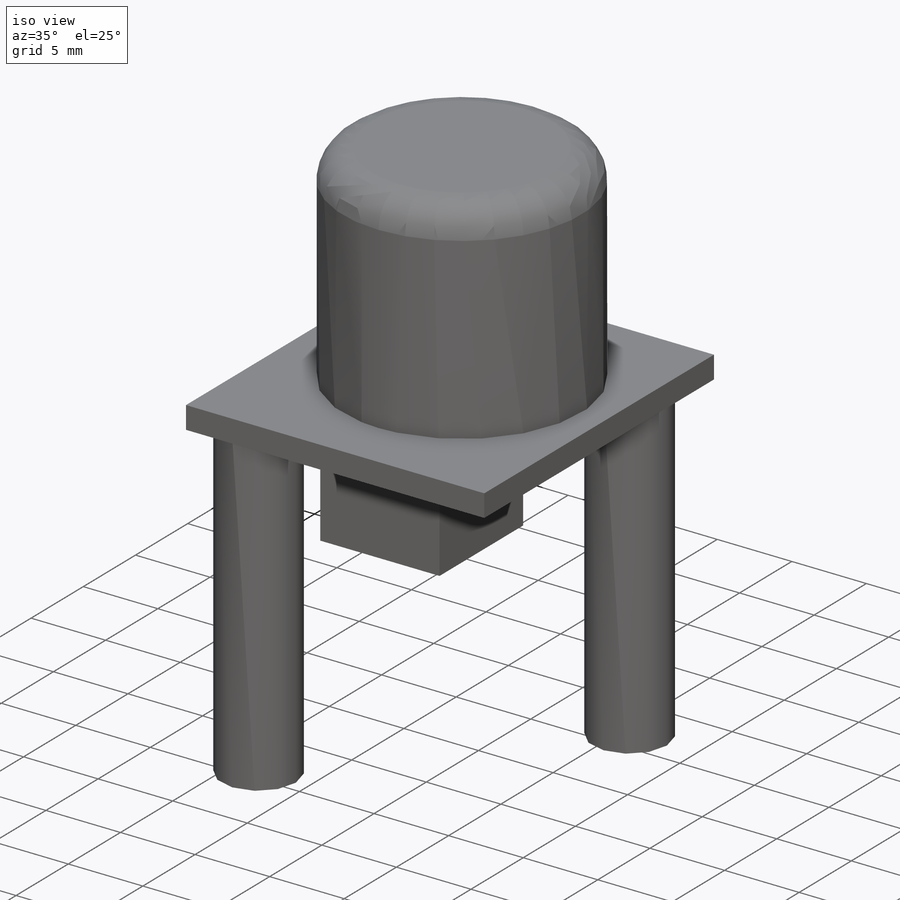
[diagram: iso view]
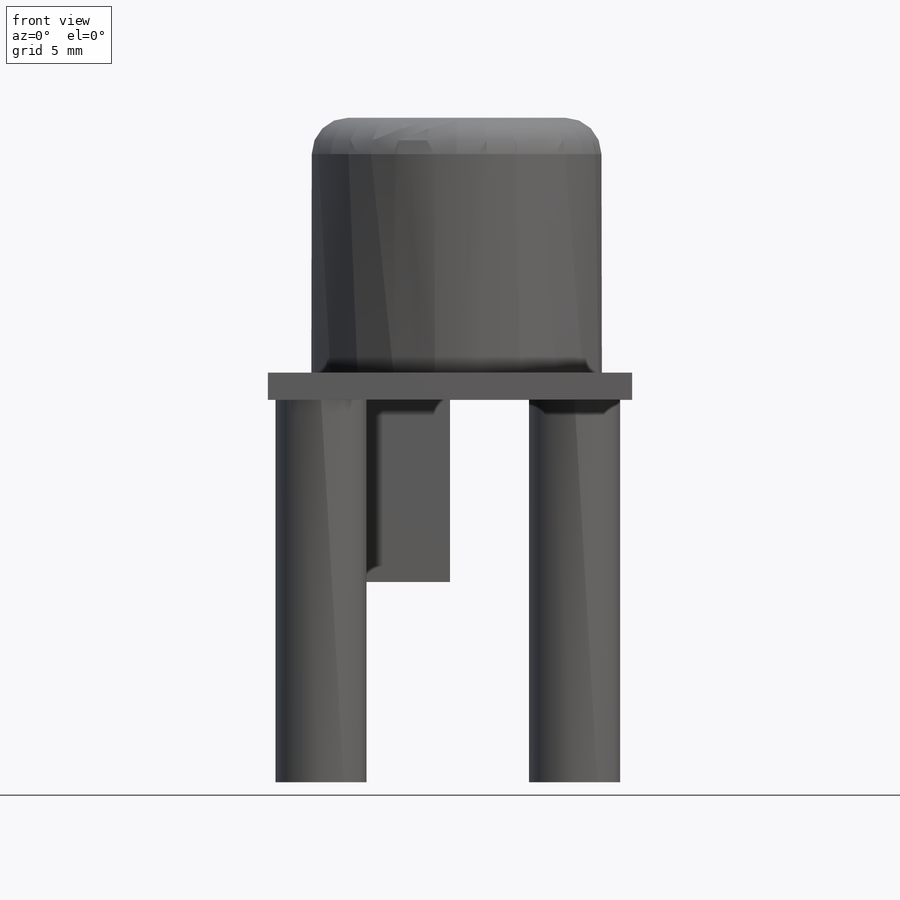
[diagram: front view]
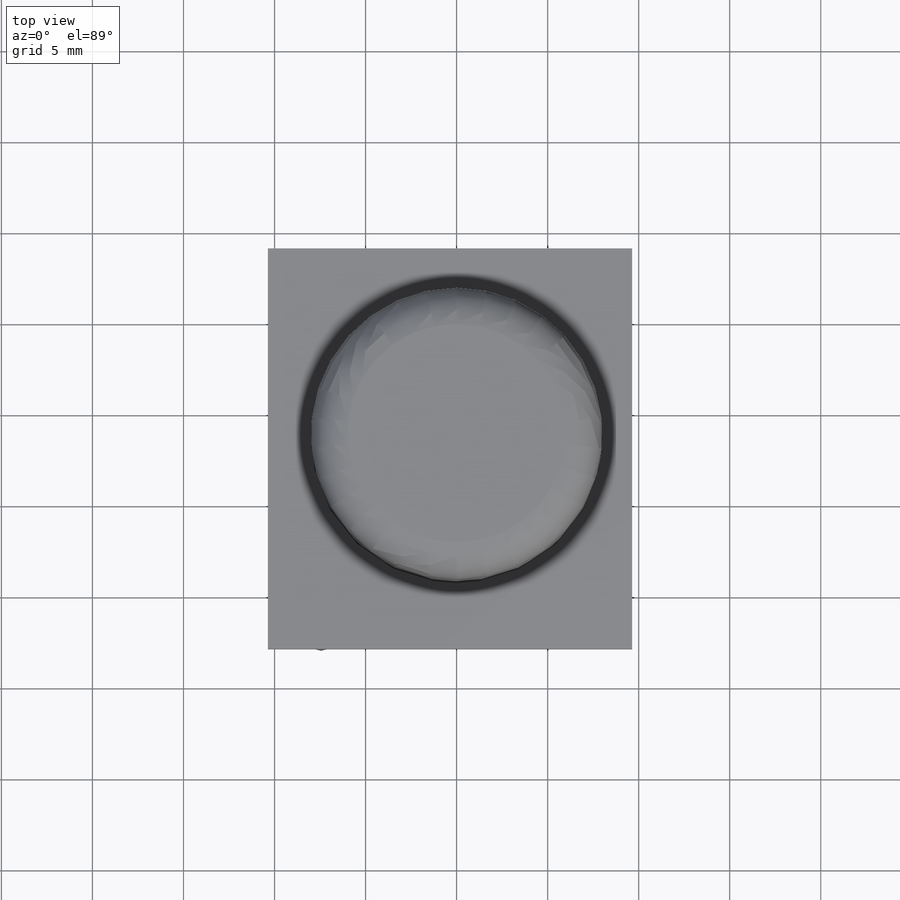
[diagram: top view]
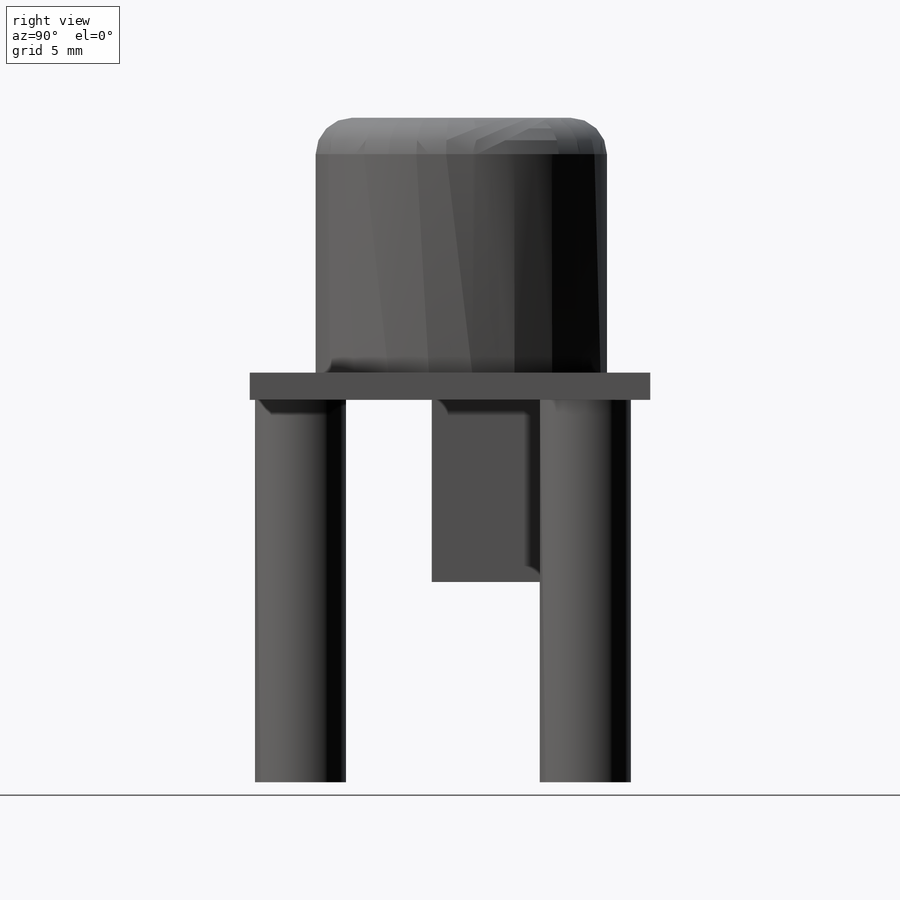
[diagram: right view]
SOLIDWORKS PART (.sldprt)
format: sldprt  version: not decoded by parser v0  size: 218,112 bytes
history: native  units: mm
features: sketch x4, extrude x4, plane x3, material x1, fillet x1 (+9 scaffold rows collapsed)
feature tree (22):
  scaffold x9  (default folders/planes/origin — collapsed)
  material  "Material <não especificado>"
  plane  "Frontal"
  plane  "Superior"
  plane  "Direito"
  sketch  "Esboço1"  dims[D1=22.0mm D2=20.0mm]
  extrude  "Ressalto-extrusão1"  Depth=1.5mm
  sketch  "Esboço2"  dims[D1=16.0mm]
  extrude  "Ressalto-extrusão2"  Depth=14mm
  fillet  "Filete1"  Radius=2mm
  sketch  "Esboço3"  dims[D1=5.0mm D2=5.0mm]
  extrude  "Ressalto-extrusão3"  Depth=21mm
  sketch  "Esboço4"  dims[D1=8.0mm D2=8.0mm D3=2.0mm D4=4.0mm]
  extrude  "Ressalto-extrusão4"  Depth=10mm
decode coverage: 9 of 9 modeling features carry decoded parameters
note: suppression state not decoded; provenance and decode notes live in map.json
